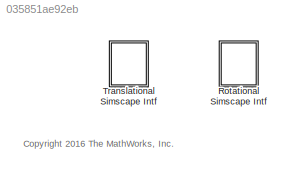
MODEL slx_035851ae92eb
KIND library
CONFIG AbsTol = auto
CONFIG FixedStep = auto
CONFIG MaxStep = auto
CONFIG MinStep = auto
CONFIG RelTol = 1e-3
CONFIG SampleTimeConstraint = Unconstrained
CONFIG Solver = ode45
CONFIG SolverMode = Auto
CONFIG SolverName = ode45
CONFIG StartTime = 0.0
CONFIG StopTime = 10.0
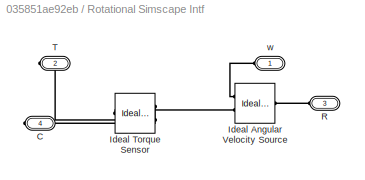
BLOCK [SubSystem] Rotational Simscape Intf
  Ports = [0, 0, 0, 0, 0, 2, 2]
  RequestExecContextInheritance = off
  Variant = off
BLOCK [PMIOPort] Rotational Simscape Intf/C
  Port = 4
  Side = Right
BLOCK [Reference] Rotational Simscape Intf/Ideal Angular Velocity Source  REF=fl_lib/Mechanical/Mechanical Sources/Ideal Angular
Velocity Source
  Ports = [0, 0, 0, 0, 0, 1, 2]
  SourceBlock = fl_lib/Mechanical/Mechanical Sources/Ideal Angular\nVelocity Source
  SourceType = Ideal Angular\nVelocity Source
BLOCK [Reference] Rotational Simscape Intf/Ideal Torque Sensor  REF=fl_lib/Mechanical/Mechanical Sensors/Ideal Torque Sensor
  Ports = [0, 0, 0, 0, 0, 1, 2]
  SourceBlock = fl_lib/Mechanical/Mechanical Sensors/Ideal Torque Sensor
  SourceType = Ideal Torque Sensor
BLOCK [PMIOPort] Rotational Simscape Intf/R
  Port = 3
  Side = Left
BLOCK [PMIOPort] Rotational Simscape Intf/T
  Port = 2
  Side = Right
BLOCK [PMIOPort] Rotational Simscape Intf/w
  Port = 1
  Side = Left
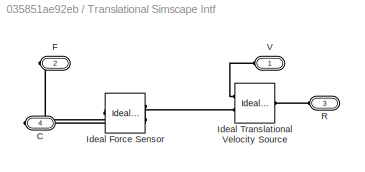
BLOCK [SubSystem] Translational Simscape Intf
  Ports = [0, 0, 0, 0, 0, 2, 2]
  RequestExecContextInheritance = off
  Variant = off
BLOCK [PMIOPort] Translational Simscape Intf/C
  Port = 4
  Side = Right
BLOCK [PMIOPort] Translational Simscape Intf/F
  Port = 2
  Side = Right
BLOCK [Reference] Translational Simscape Intf/Ideal Force Sensor  REF=fl_lib/Mechanical/Mechanical Sensors/Ideal Force Sensor
  Ports = [0, 0, 0, 0, 0, 1, 2]
  SourceBlock = fl_lib/Mechanical/Mechanical Sensors/Ideal Force Sensor
  SourceType = Ideal Force Sensor
BLOCK [Reference] Translational Simscape Intf/Ideal Translational Velocity Source  REF=fl_lib/Mechanical/Mechanical Sources/Ideal Translational
Velocity Source
  Ports = [0, 0, 0, 0, 0, 1, 2]
  SourceBlock = fl_lib/Mechanical/Mechanical Sources/Ideal Translational\nVelocity Source
  SourceType = Ideal Translational\nVelocity Source
BLOCK [PMIOPort] Translational Simscape Intf/R
  Port = 3
  Side = Left
BLOCK [PMIOPort] Translational Simscape Intf/V
  Port = 1
  Side = Left
ANNOTATION (root): <copyright redacted>
PLINE Rotational Simscape Intf/C:RConn1 -- Rotational Simscape Intf/Ideal Torque Sensor:RConn1
PLINE Rotational Simscape Intf/Ideal Angular Velocity Source:LConn1 -- Rotational Simscape Intf/R:RConn1
PLINE Rotational Simscape Intf/Ideal Angular Velocity Source:RConn1 -- Rotational Simscape Intf/w:RConn1
PLINE Rotational Simscape Intf/Ideal Angular Velocity Source:RConn2 -- Rotational Simscape Intf/Ideal Torque Sensor:LConn1
PLINE Rotational Simscape Intf/Ideal Torque Sensor:RConn2 -- Rotational Simscape Intf/T:RConn1
PLINE Translational Simscape Intf/C:RConn1 -- Translational Simscape Intf/Ideal Force Sensor:RConn1
PLINE Translational Simscape Intf/F:RConn1 -- Translational Simscape Intf/Ideal Force Sensor:RConn2
PLINE Translational Simscape Intf/Ideal Force Sensor:LConn1 -- Translational Simscape Intf/Ideal Translational Velocity Source:RConn2
PLINE Translational Simscape Intf/Ideal Translational Velocity Source:LConn1 -- Translational Simscape Intf/R:RConn1
PLINE Translational Simscape Intf/Ideal Translational Velocity Source:RConn1 -- Translational Simscape Intf/V:RConn1
